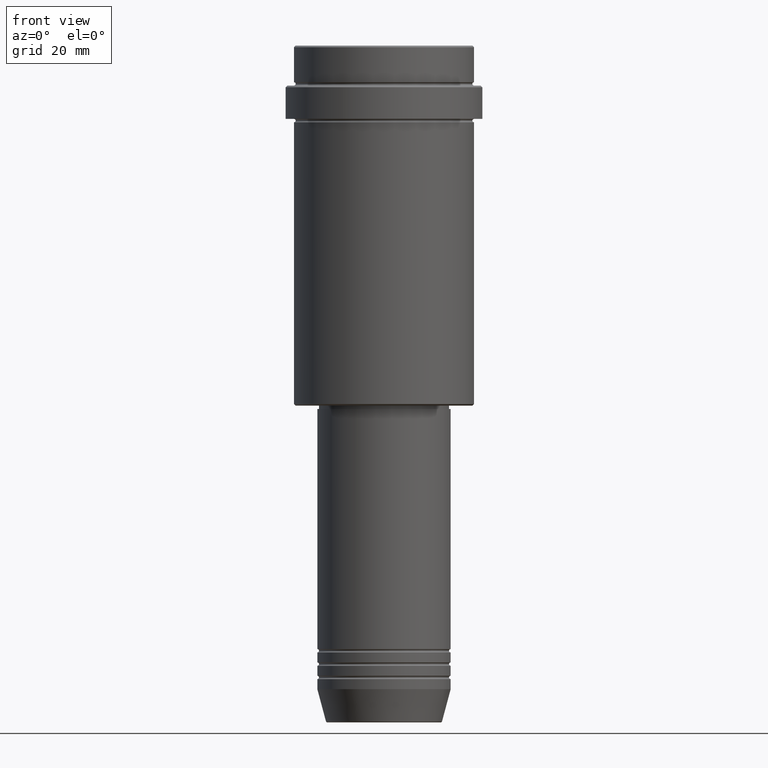
[diagram: clean part render]
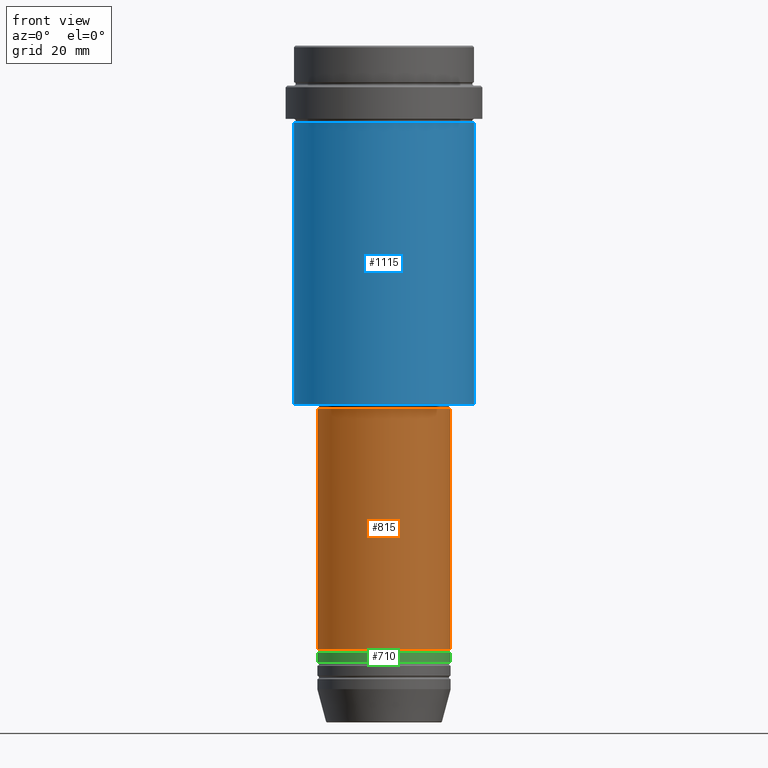
[diagram: same view with three faces highlighted in distinct colors, each labeled with its STEP entity id]
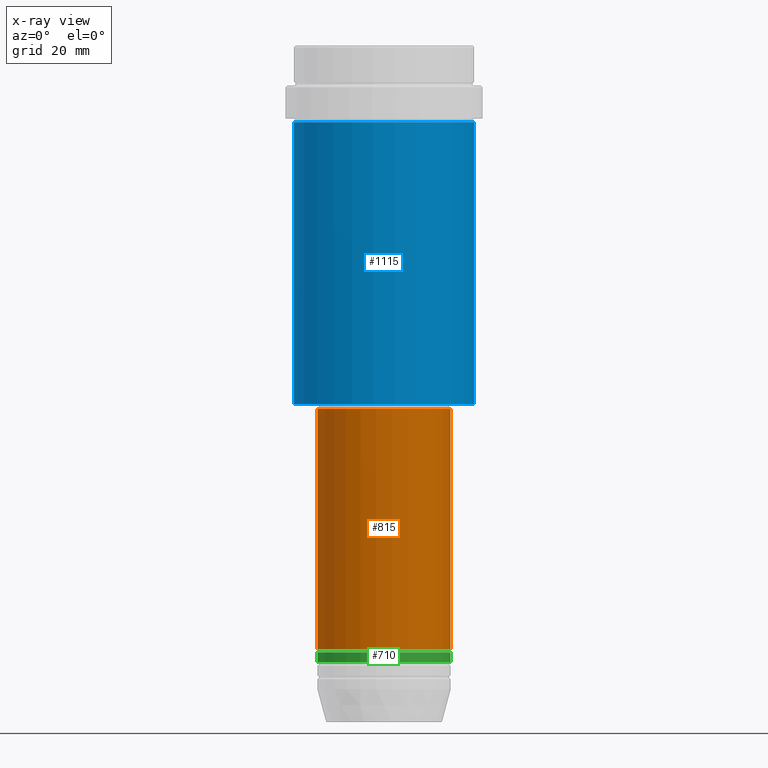
[diagram: x-ray of the same camera — body ghosted, the three highlighted faces saturated]
A machine part, front view with three faces highlighted in distinct colors.
The next image is the same camera in x-ray (body ghosted, the three faces saturated) — at least one of them is partly hidden behind the body in this view.
Their STEP definitions:

[orange] entity #815 — the highlighted cylindrical surface (partial cylindrical patch) has radius 20 mm, axis along (-0, -0, 1).
#9 = CARTESIAN_POINT ( 'NONE',  ( -20.00000000000000000, 2.449293598294706513E-15, -180.9999999999999147 ) ) ;
#20 = AXIS2_PLACEMENT_3D ( 'NONE', #1120, #989, #1200 ) ;
#106 = DIRECTION ( 'NONE',  ( 1.000000000000000000, 0.000000000000000000, 0.000000000000000000 ) ) ;
#178 = LINE ( 'NONE', #370, #1327 ) ;
#211 = CARTESIAN_POINT ( 'NONE',  ( 0.000000000000000000, 0.000000000000000000, -109.0000000000000142 ) ) ;
#216 = ORIENTED_EDGE ( 'NONE', *, *, #326, .F. ) ;
#219 = ORIENTED_EDGE ( 'NONE', *, *, #345, .T. ) ;
#326 = EDGE_CURVE ( 'NONE', #878, #1273, #703, .T. ) ;
#345 = EDGE_CURVE ( 'NONE', #1049, #531, #178, .T. ) ;
#370 = CARTESIAN_POINT ( 'NONE',  ( 20.00000000000000000, 0.000000000000000000, 0.000000000000000000 ) ) ;
#426 = DIRECTION ( 'NONE',  ( -0.000000000000000000, -0.000000000000000000, 1.000000000000000000 ) ) ;
#531 = VERTEX_POINT ( 'NONE', #556 ) ;
#556 = CARTESIAN_POINT ( 'NONE',  ( 20.00000000000000000, 0.000000000000000000, -109.0000000000000142 ) ) ;
#561 = ORIENTED_EDGE ( 'NONE', *, *, #696, .T. ) ;
#610 = CARTESIAN_POINT ( 'NONE',  ( 20.00000000000000000, 0.000000000000000000, -180.9999999999999147 ) ) ;
#624 = CIRCLE ( 'NONE', #20, 20.00000000000000000 ) ;
#631 = EDGE_LOOP ( 'NONE', ( #216, #561, #219, #920 ) ) ;
#696 = EDGE_CURVE ( 'NONE', #878, #1049, #624, .T. ) ;
#703 = LINE ( 'NONE', #791, #1205 ) ;
#719 = CIRCLE ( 'NONE', #913, 20.00000000000000000 ) ;
#791 = CARTESIAN_POINT ( 'NONE',  ( -20.00000000000000000, 2.449293598294706513E-15, 0.000000000000000000 ) ) ;
#812 = FACE_OUTER_BOUND ( 'NONE', #631, .T. ) ;
#815 = ADVANCED_FACE ( 'NONE', ( #812 ), #1007, .T. ) ;
#866 = EDGE_CURVE ( 'NONE', #1273, #531, #719, .T. ) ;
#878 = VERTEX_POINT ( 'NONE', #9 ) ;
#913 = AXIS2_PLACEMENT_3D ( 'NONE', #211, #426, #106 ) ;
#920 = ORIENTED_EDGE ( 'NONE', *, *, #866, .F. ) ;
#925 = DIRECTION ( 'NONE',  ( -0.000000000000000000, -0.000000000000000000, 1.000000000000000000 ) ) ;
#989 = DIRECTION ( 'NONE',  ( -0.000000000000000000, -0.000000000000000000, 1.000000000000000000 ) ) ;
#1007 = CYLINDRICAL_SURFACE ( 'NONE', #1417, 20.00000000000000000 ) ;
#1012 = DIRECTION ( 'NONE',  ( -0.000000000000000000, -0.000000000000000000, 1.000000000000000000 ) ) ;
#1049 = VERTEX_POINT ( 'NONE', #610 ) ;
#1120 = CARTESIAN_POINT ( 'NONE',  ( 0.000000000000000000, 0.000000000000000000, -180.9999999999999147 ) ) ;
#1150 = DIRECTION ( 'NONE',  ( -0.000000000000000000, -0.000000000000000000, 1.000000000000000000 ) ) ;
#1170 = CARTESIAN_POINT ( 'NONE',  ( -20.00000000000000000, 2.449293598294706513E-15, -109.0000000000000142 ) ) ;
#1200 = DIRECTION ( 'NONE',  ( 1.000000000000000000, 0.000000000000000000, 0.000000000000000000 ) ) ;
#1205 = VECTOR ( 'NONE', #925, 1000.000000000000000 ) ;
#1262 = DIRECTION ( 'NONE',  ( 1.000000000000000000, 0.000000000000000000, 0.000000000000000000 ) ) ;
#1267 = CARTESIAN_POINT ( 'NONE',  ( 0.000000000000000000, 0.000000000000000000, 0.000000000000000000 ) ) ;
#1273 = VERTEX_POINT ( 'NONE', #1170 ) ;
#1327 = VECTOR ( 'NONE', #1012, 1000.000000000000000 ) ;
#1417 = AXIS2_PLACEMENT_3D ( 'NONE', #1267, #1150, #1262 ) ;

[blue] entity #1115 — the highlighted cylindrical surface (partial cylindrical patch) has radius 27 mm, axis along (-0, -0, 1).
#2 = DIRECTION ( 'NONE',  ( -0.000000000000000000, -0.000000000000000000, 1.000000000000000000 ) ) ;
#66 = CARTESIAN_POINT ( 'NONE',  ( 0.000000000000000000, 0.000000000000000000, 0.000000000000000000 ) ) ;
#72 = EDGE_CURVE ( 'NONE', #549, #781, #87, .T. ) ;
#87 = CIRCLE ( 'NONE', #205, 27.00000000000000355 ) ;
#150 = CYLINDRICAL_SURFACE ( 'NONE', #1210, 27.00000000000000355 ) ;
#158 = EDGE_CURVE ( 'NONE', #768, #549, #321, .T. ) ;
#179 = CARTESIAN_POINT ( 'NONE',  ( 27.00000000000000355, 0.000000000000000000, -107.4999999999999716 ) ) ;
#205 = AXIS2_PLACEMENT_3D ( 'NONE', #383, #828, #705 ) ;
#214 = EDGE_CURVE ( 'NONE', #768, #478, #853, .T. ) ;
#232 = VECTOR ( 'NONE', #730, 1000.000000000000000 ) ;
#321 = LINE ( 'NONE', #546, #232 ) ;
#378 = CARTESIAN_POINT ( 'NONE',  ( 27.00000000000000355, 0.000000000000000000, -23.00000000000001421 ) ) ;
#383 = CARTESIAN_POINT ( 'NONE',  ( 0.000000000000000000, 0.000000000000000000, -23.00000000000001421 ) ) ;
#399 = DIRECTION ( 'NONE',  ( -0.000000000000000000, -0.000000000000000000, 1.000000000000000000 ) ) ;
#463 = ORIENTED_EDGE ( 'NONE', *, *, #158, .F. ) ;
#478 = VERTEX_POINT ( 'NONE', #179 ) ;
#534 = ORIENTED_EDGE ( 'NONE', *, *, #72, .F. ) ;
#538 = VECTOR ( 'NONE', #1025, 1000.000000000000000 ) ;
#546 = CARTESIAN_POINT ( 'NONE',  ( -27.00000000000000355, 3.306546357697854128E-15, 0.000000000000000000 ) ) ;
#549 = VERTEX_POINT ( 'NONE', #754 ) ;
#636 = CARTESIAN_POINT ( 'NONE',  ( 0.000000000000000000, 0.000000000000000000, -107.4999999999999716 ) ) ;
#649 = EDGE_CURVE ( 'NONE', #478, #781, #1193, .T. ) ;
#668 = CARTESIAN_POINT ( 'NONE',  ( -27.00000000000000355, 3.306546357697854128E-15, -107.4999999999999716 ) ) ;
#705 = DIRECTION ( 'NONE',  ( 1.000000000000000000, 0.000000000000000000, 0.000000000000000000 ) ) ;
#730 = DIRECTION ( 'NONE',  ( -0.000000000000000000, -0.000000000000000000, 1.000000000000000000 ) ) ;
#754 = CARTESIAN_POINT ( 'NONE',  ( -27.00000000000000355, 3.306546357697854128E-15, -23.00000000000001421 ) ) ;
#768 = VERTEX_POINT ( 'NONE', #668 ) ;
#781 = VERTEX_POINT ( 'NONE', #378 ) ;
#826 = DIRECTION ( 'NONE',  ( 1.000000000000000000, 0.000000000000000000, 0.000000000000000000 ) ) ;
#828 = DIRECTION ( 'NONE',  ( -0.000000000000000000, -0.000000000000000000, 1.000000000000000000 ) ) ;
#853 = CIRCLE ( 'NONE', #1387, 27.00000000000000355 ) ;
#887 = ORIENTED_EDGE ( 'NONE', *, *, #649, .T. ) ;
#1006 = FACE_OUTER_BOUND ( 'NONE', #1161, .T. ) ;
#1016 = CARTESIAN_POINT ( 'NONE',  ( 27.00000000000000355, 0.000000000000000000, 0.000000000000000000 ) ) ;
#1025 = DIRECTION ( 'NONE',  ( -0.000000000000000000, -0.000000000000000000, 1.000000000000000000 ) ) ;
#1115 = ADVANCED_FACE ( 'NONE', ( #1006 ), #150, .T. ) ;
#1161 = EDGE_LOOP ( 'NONE', ( #463, #1245, #887, #534 ) ) ;
#1193 = LINE ( 'NONE', #1016, #538 ) ;
#1210 = AXIS2_PLACEMENT_3D ( 'NONE', #66, #399, #826 ) ;
#1245 = ORIENTED_EDGE ( 'NONE', *, *, #214, .T. ) ;
#1387 = AXIS2_PLACEMENT_3D ( 'NONE', #636, #2, #1403 ) ;
#1403 = DIRECTION ( 'NONE',  ( -1.000000000000000000, 0.000000000000000000, 0.000000000000000000 ) ) ;

[green] entity #710 — the highlighted cylindrical surface (partial cylindrical patch) has radius 20 mm, axis along (-0, -0, 1).
#8 = VERTEX_POINT ( 'NONE', #498 ) ;
#35 = CYLINDRICAL_SURFACE ( 'NONE', #1046, 20.00000000000000000 ) ;
#109 = EDGE_CURVE ( 'NONE', #1066, #395, #740, .T. ) ;
#217 = DIRECTION ( 'NONE',  ( 1.000000000000000000, 0.000000000000000000, 0.000000000000000000 ) ) ;
#328 = DIRECTION ( 'NONE',  ( -0.000000000000000000, -0.000000000000000000, 1.000000000000000000 ) ) ;
#332 = CARTESIAN_POINT ( 'NONE',  ( 20.00000000000000000, 0.000000000000000000, 0.000000000000000000 ) ) ;
#357 = FACE_OUTER_BOUND ( 'NONE', #433, .T. ) ;
#395 = VERTEX_POINT ( 'NONE', #1283 ) ;
#433 = EDGE_LOOP ( 'NONE', ( #988, #923, #1008, #1054 ) ) ;
#455 = CARTESIAN_POINT ( 'NONE',  ( 0.000000000000000000, 0.000000000000000000, -184.9999999999999147 ) ) ;
#489 = AXIS2_PLACEMENT_3D ( 'NONE', #455, #557, #893 ) ;
#497 = DIRECTION ( 'NONE',  ( -0.000000000000000000, -0.000000000000000000, 1.000000000000000000 ) ) ;
#498 = CARTESIAN_POINT ( 'NONE',  ( -20.00000000000000000, 2.449293598294706513E-15, -184.9999999999999147 ) ) ;
#511 = AXIS2_PLACEMENT_3D ( 'NONE', #750, #847, #217 ) ;
#557 = DIRECTION ( 'NONE',  ( -0.000000000000000000, -0.000000000000000000, 1.000000000000000000 ) ) ;
#575 = DIRECTION ( 'NONE',  ( 1.000000000000000000, 0.000000000000000000, 0.000000000000000000 ) ) ;
#606 = VECTOR ( 'NONE', #497, 1000.000000000000000 ) ;
#657 = VERTEX_POINT ( 'NONE', #771 ) ;
#689 = EDGE_CURVE ( 'NONE', #657, #395, #1141, .T. ) ;
#710 = ADVANCED_FACE ( 'NONE', ( #357 ), #35, .T. ) ;
#740 = LINE ( 'NONE', #332, #823 ) ;
#750 = CARTESIAN_POINT ( 'NONE',  ( 0.000000000000000000, 0.000000000000000000, -181.9999999999999147 ) ) ;
#764 = DIRECTION ( 'NONE',  ( -0.000000000000000000, -0.000000000000000000, 1.000000000000000000 ) ) ;
#771 = CARTESIAN_POINT ( 'NONE',  ( -20.00000000000000000, 2.449293598294706513E-15, -181.9999999999999147 ) ) ;
#823 = VECTOR ( 'NONE', #764, 1000.000000000000000 ) ;
#847 = DIRECTION ( 'NONE',  ( -0.000000000000000000, -0.000000000000000000, 1.000000000000000000 ) ) ;
#863 = CARTESIAN_POINT ( 'NONE',  ( 20.00000000000000000, 0.000000000000000000, -184.9999999999999147 ) ) ;
#893 = DIRECTION ( 'NONE',  ( 1.000000000000000000, 0.000000000000000000, 0.000000000000000000 ) ) ;
#923 = ORIENTED_EDGE ( 'NONE', *, *, #942, .T. ) ;
#942 = EDGE_CURVE ( 'NONE', #8, #1066, #1119, .T. ) ;
#988 = ORIENTED_EDGE ( 'NONE', *, *, #1152, .F. ) ;
#1008 = ORIENTED_EDGE ( 'NONE', *, *, #109, .T. ) ;
#1020 = CARTESIAN_POINT ( 'NONE',  ( -20.00000000000000000, 2.449293598294706513E-15, 0.000000000000000000 ) ) ;
#1046 = AXIS2_PLACEMENT_3D ( 'NONE', #1232, #328, #575 ) ;
#1054 = ORIENTED_EDGE ( 'NONE', *, *, #689, .F. ) ;
#1066 = VERTEX_POINT ( 'NONE', #863 ) ;
#1119 = CIRCLE ( 'NONE', #489, 20.00000000000000000 ) ;
#1141 = CIRCLE ( 'NONE', #511, 20.00000000000000000 ) ;
#1152 = EDGE_CURVE ( 'NONE', #8, #657, #1335, .T. ) ;
#1232 = CARTESIAN_POINT ( 'NONE',  ( 0.000000000000000000, 0.000000000000000000, 0.000000000000000000 ) ) ;
#1283 = CARTESIAN_POINT ( 'NONE',  ( 20.00000000000000000, 0.000000000000000000, -181.9999999999999147 ) ) ;
#1335 = LINE ( 'NONE', #1020, #606 ) ;